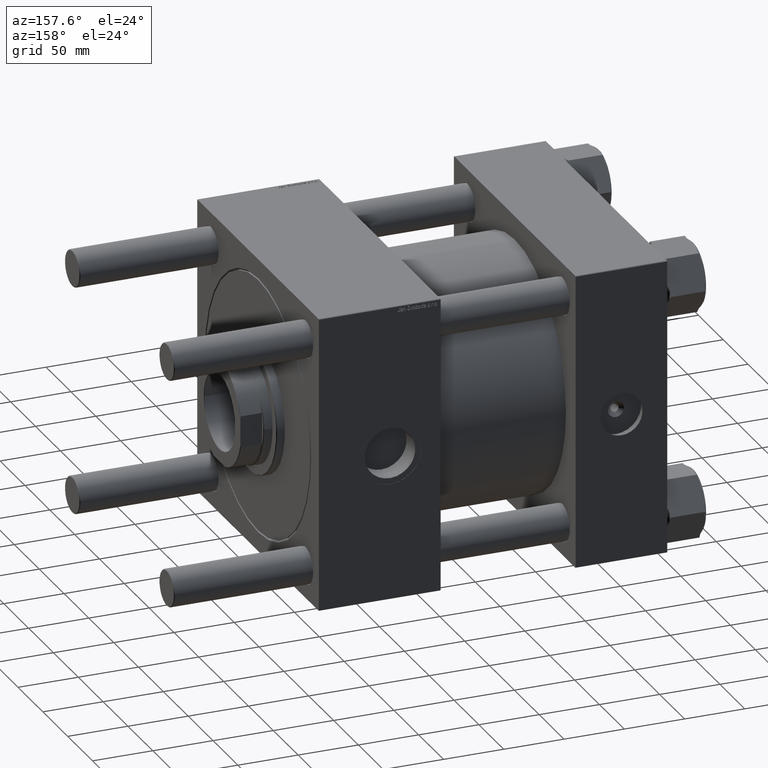
[diagram: clean part render]
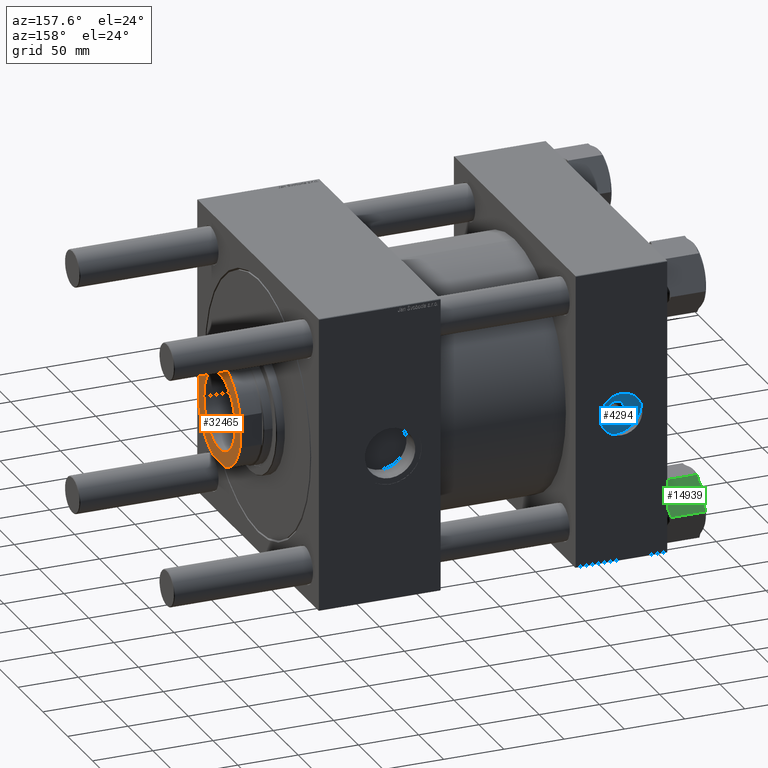
[diagram: same view with three faces highlighted in distinct colors, each labeled with its STEP entity id]
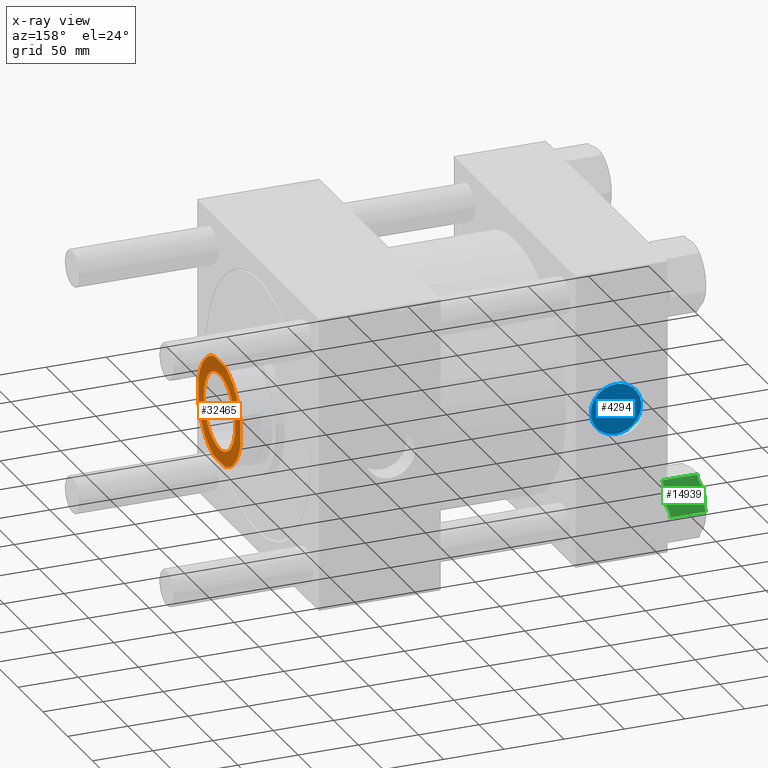
[diagram: x-ray of the same camera — body ghosted, the three highlighted faces saturated]
A machine part, auxiliary view with three faces highlighted in distinct colors.
The next image is the same camera in x-ray (body ghosted, the three faces saturated) — at least one of them is partly hidden behind the body in this view.
Their STEP definitions:

[orange] entity #32465 — the highlighted planar face has unit normal (1, 0, 0).
#2837 = VERTEX_POINT ( 'NONE', #33810 ) ;
#4286 = CARTESIAN_POINT ( 'NONE',  ( 0.000000000000000000, 0.000000000000000000, 245.0000000000000000 ) ) ;
#4710 = DIRECTION ( 'NONE',  ( 0.000000000000000000, -0.000000000000000000, -1.000000000000000000 ) ) ;
#4971 = DIRECTION ( 'NONE',  ( 1.000000000000000000, 0.000000000000000000, 0.000000000000000000 ) ) ;
#5025 = CARTESIAN_POINT ( 'NONE',  ( -42.00000000000000000, 11.32475165290612296, 245.0000000000000000 ) ) ;
#5031 = VERTEX_POINT ( 'NONE', #7472 ) ;
#5293 = AXIS2_PLACEMENT_3D ( 'NONE', #4286, #20746, #38152 ) ;
#6237 = ORIENTED_EDGE ( 'NONE', *, *, #14795, .T. ) ;
#6331 = DIRECTION ( 'NONE',  ( -0.000000000000000000, 0.000000000000000000, 1.000000000000000000 ) ) ;
#7472 = CARTESIAN_POINT ( 'NONE',  ( 11.32475165290636809, -42.00000000000000000, 245.0000000000000000 ) ) ;
#7517 = CARTESIAN_POINT ( 'NONE',  ( -11.32475165290609986, 42.00000000000000711, 245.0000000000000000 ) ) ;
#7546 = EDGE_LOOP ( 'NONE', ( #14921, #47948, #9696, #28595, #49184, #45656, #43589, #6237 ) ) ;
#9696 = ORIENTED_EDGE ( 'NONE', *, *, #26559, .T. ) ;
#10086 = AXIS2_PLACEMENT_3D ( 'NONE', #51944, #21239, #48748 ) ;
#10660 = FACE_OUTER_BOUND ( 'NONE', #7546, .T. ) ;
#11803 = DIRECTION ( 'NONE',  ( -0.000000000000000000, 0.000000000000000000, 1.000000000000000000 ) ) ;
#12168 = AXIS2_PLACEMENT_3D ( 'NONE', #45953, #6331, #23960 ) ;
#12346 = DIRECTION ( 'NONE',  ( -1.652117596168387263E-16, 1.000000000000000000, -0.000000000000000000 ) ) ;
#13232 = LINE ( 'NONE', #14381, #37281 ) ;
#13240 = AXIS2_PLACEMENT_3D ( 'NONE', #56643, #11803, #21020 ) ;
#14381 = CARTESIAN_POINT ( 'NONE',  ( -42.00000000000000711, 42.00000000000000711, 245.0000000000000000 ) ) ;
#14795 = EDGE_CURVE ( 'NONE', #5031, #25158, #30216, .T. ) ;
#14913 = CARTESIAN_POINT ( 'NONE',  ( -41.99999999999999289, -42.00000000000000000, 245.0000000000000000 ) ) ;
#14921 = ORIENTED_EDGE ( 'NONE', *, *, #17417, .T. ) ;
#16280 = EDGE_CURVE ( 'NONE', #31792, #5031, #19511, .T. ) ;
#16680 = LINE ( 'NONE', #17813, #27559 ) ;
#16836 = CARTESIAN_POINT ( 'NONE',  ( 31.55000000000002203, 0.000000000000000000, 245.0000000000000000 ) ) ;
#17417 = EDGE_CURVE ( 'NONE', #25158, #52451, #16680, .T. ) ;
#17813 = CARTESIAN_POINT ( 'NONE',  ( 42.00000000000000000, 42.00000000000000711, 245.0000000000000000 ) ) ;
#18357 = CIRCLE ( 'NONE', #10086, 31.55000000000002203 ) ;
#19511 = LINE ( 'NONE', #14913, #43273 ) ;
#20500 = DIRECTION ( 'NONE',  ( 1.000000000000000000, 0.000000000000000000, 0.000000000000000000 ) ) ;
#20624 = CIRCLE ( 'NONE', #49352, 31.55000000000002203 ) ;
#20746 = DIRECTION ( 'NONE',  ( -0.000000000000000000, 0.000000000000000000, 1.000000000000000000 ) ) ;
#21020 = DIRECTION ( 'NONE',  ( 1.000000000000000000, 0.000000000000000000, 0.000000000000000000 ) ) ;
#21239 = DIRECTION ( 'NONE',  ( 0.000000000000000000, -0.000000000000000000, -1.000000000000000000 ) ) ;
#21729 = VERTEX_POINT ( 'NONE', #7517 ) ;
#22403 = AXIS2_PLACEMENT_3D ( 'NONE', #28377, #32716, #20500 ) ;
#22895 = VERTEX_POINT ( 'NONE', #5025 ) ;
#22935 = VERTEX_POINT ( 'NONE', #50159 ) ;
#23869 = DIRECTION ( 'NONE',  ( 1.000000000000000000, 0.000000000000000000, 0.000000000000000000 ) ) ;
#23960 = DIRECTION ( 'NONE',  ( 1.000000000000000000, 0.000000000000000000, 0.000000000000000000 ) ) ;
#23973 = DIRECTION ( 'NONE',  ( -0.000000000000000000, 0.000000000000000000, 1.000000000000000000 ) ) ;
#24793 = FACE_BOUND ( 'NONE', #37984, .T. ) ;
#24853 = EDGE_CURVE ( 'NONE', #51743, #2837, #18357, .T. ) ;
#25158 = VERTEX_POINT ( 'NONE', #37094 ) ;
#25522 = CIRCLE ( 'NONE', #30158, 43.50000000000000711 ) ;
#26263 = LINE ( 'NONE', #30892, #52662 ) ;
#26559 = EDGE_CURVE ( 'NONE', #22935, #21729, #26263, .T. ) ;
#26978 = DIRECTION ( 'NONE',  ( 1.000000000000000000, 0.000000000000000000, 0.000000000000000000 ) ) ;
#27559 = VECTOR ( 'NONE', #12346, 1000.000000000000000 ) ;
#28377 = CARTESIAN_POINT ( 'NONE',  ( 0.000000000000000000, 0.000000000000000000, 245.0000000000000000 ) ) ;
#28595 = ORIENTED_EDGE ( 'NONE', *, *, #41774, .T. ) ;
#28828 = CIRCLE ( 'NONE', #22403, 43.50000000000004263 ) ;
#30158 = AXIS2_PLACEMENT_3D ( 'NONE', #49245, #23973, #4971 ) ;
#30216 = CIRCLE ( 'NONE', #5293, 43.50000000000006395 ) ;
#30892 = CARTESIAN_POINT ( 'NONE',  ( -42.00000000000000711, 42.00000000000000711, 245.0000000000000000 ) ) ;
#31792 = VERTEX_POINT ( 'NONE', #41187 ) ;
#32126 = EDGE_CURVE ( 'NONE', #52451, #22935, #28828, .T. ) ;
#32465 = ADVANCED_FACE ( 'NONE', ( #24793, #10660 ), #42457, .T. ) ;
#32716 = DIRECTION ( 'NONE',  ( -0.000000000000000000, 0.000000000000000000, 1.000000000000000000 ) ) ;
#33810 = CARTESIAN_POINT ( 'NONE',  ( -31.55000000000002203, 3.863760651309902128E-15, 245.0000000000000000 ) ) ;
#35547 = VERTEX_POINT ( 'NONE', #48240 ) ;
#37094 = CARTESIAN_POINT ( 'NONE',  ( 42.00000000000000711, -11.32475165290633434, 245.0000000000000000 ) ) ;
#37281 = VECTOR ( 'NONE', #53169, 1000.000000000000000 ) ;
#37984 = EDGE_LOOP ( 'NONE', ( #48445, #45834 ) ) ;
#38152 = DIRECTION ( 'NONE',  ( 1.000000000000000000, 0.000000000000000000, 0.000000000000000000 ) ) ;
#41187 = CARTESIAN_POINT ( 'NONE',  ( -11.32475165290613006, -42.00000000000000000, 245.0000000000000000 ) ) ;
#41774 = EDGE_CURVE ( 'NONE', #21729, #22895, #51140, .T. ) ;
#41858 = EDGE_CURVE ( 'NONE', #22895, #35547, #13232, .T. ) ;
#42457 = PLANE ( 'NONE',  #12168 ) ;
#43253 = EDGE_CURVE ( 'NONE', #2837, #51743, #20624, .T. ) ;
#43273 = VECTOR ( 'NONE', #23869, 1000.000000000000000 ) ;
#43589 = ORIENTED_EDGE ( 'NONE', *, *, #16280, .T. ) ;
#44344 = CARTESIAN_POINT ( 'NONE',  ( 0.000000000000000000, 0.000000000000000000, 245.0000000000000000 ) ) ;
#45656 = ORIENTED_EDGE ( 'NONE', *, *, #51317, .T. ) ;
#45834 = ORIENTED_EDGE ( 'NONE', *, *, #43253, .T. ) ;
#45953 = CARTESIAN_POINT ( 'NONE',  ( 0.000000000000000000, 0.000000000000000000, 245.0000000000000000 ) ) ;
#47810 = CARTESIAN_POINT ( 'NONE',  ( 42.00000000000000711, 11.32475165290627039, 245.0000000000000000 ) ) ;
#47948 = ORIENTED_EDGE ( 'NONE', *, *, #32126, .T. ) ;
#48240 = CARTESIAN_POINT ( 'NONE',  ( -42.00000000000000000, -11.32475165290613717, 245.0000000000000000 ) ) ;
#48445 = ORIENTED_EDGE ( 'NONE', *, *, #24853, .T. ) ;
#48748 = DIRECTION ( 'NONE',  ( 1.000000000000000000, 0.000000000000000000, 0.000000000000000000 ) ) ;
#49184 = ORIENTED_EDGE ( 'NONE', *, *, #41858, .T. ) ;
#49245 = CARTESIAN_POINT ( 'NONE',  ( 0.000000000000000000, 0.000000000000000000, 245.0000000000000000 ) ) ;
#49352 = AXIS2_PLACEMENT_3D ( 'NONE', #44344, #4710, #26978 ) ;
#50159 = CARTESIAN_POINT ( 'NONE',  ( 11.32475165290626506, 42.00000000000000711, 245.0000000000000000 ) ) ;
#51140 = CIRCLE ( 'NONE', #13240, 43.50000000000000711 ) ;
#51317 = EDGE_CURVE ( 'NONE', #35547, #31792, #25522, .T. ) ;
#51743 = VERTEX_POINT ( 'NONE', #16836 ) ;
#51944 = CARTESIAN_POINT ( 'NONE',  ( 0.000000000000000000, 0.000000000000000000, 245.0000000000000000 ) ) ;
#52451 = VERTEX_POINT ( 'NONE', #47810 ) ;
#52662 = VECTOR ( 'NONE', #53975, 1000.000000000000000 ) ;
#53169 = DIRECTION ( 'NONE',  ( 1.652117596168387263E-16, -1.000000000000000000, 0.000000000000000000 ) ) ;
#53975 = DIRECTION ( 'NONE',  ( -1.000000000000000000, -0.000000000000000000, -0.000000000000000000 ) ) ;
#56643 = CARTESIAN_POINT ( 'NONE',  ( 0.000000000000000000, 0.000000000000000000, 245.0000000000000000 ) ) ;

[blue] entity #4294 — the highlighted planar face has unit normal (0, 1, 0).
#1772 = VERTEX_POINT ( 'NONE', #6137 ) ;
#3118 = EDGE_CURVE ( 'NONE', #10062, #32114, #54085, .T. ) ;
#4294 = ADVANCED_FACE ( 'NONE', ( #13229, #44458 ), #40124, .T. ) ;
#5656 = DIRECTION ( 'NONE',  ( -0.000000000000000000, -1.000000000000000000, -0.000000000000000000 ) ) ;
#6137 = CARTESIAN_POINT ( 'NONE',  ( 38.00000000000000000, 111.5000000000000426, 6.639999999999979252 ) ) ;
#6936 = AXIS2_PLACEMENT_3D ( 'NONE', #19567, #54896, #15252 ) ;
#9710 = DIRECTION ( 'NONE',  ( 0.000000000000000000, 0.000000000000000000, 1.000000000000000000 ) ) ;
#10062 = VERTEX_POINT ( 'NONE', #22379 ) ;
#10639 = CIRCLE ( 'NONE', #14356, 20.96000000000000085 ) ;
#11479 = EDGE_CURVE ( 'NONE', #1772, #52874, #12600, .T. ) ;
#12600 = CIRCLE ( 'NONE', #24585, 6.639999999999979252 ) ;
#13229 = FACE_BOUND ( 'NONE', #20509, .T. ) ;
#14356 = AXIS2_PLACEMENT_3D ( 'NONE', #24472, #41010, #28824 ) ;
#15252 = DIRECTION ( 'NONE',  ( 0.000000000000000000, 0.000000000000000000, 1.000000000000000000 ) ) ;
#16275 = ORIENTED_EDGE ( 'NONE', *, *, #11479, .T. ) ;
#16625 = ORIENTED_EDGE ( 'NONE', *, *, #48045, .T. ) ;
#19567 = CARTESIAN_POINT ( 'NONE',  ( 38.00000000000000000, 111.5000000000000426, 0.000000000000000000 ) ) ;
#20509 = EDGE_LOOP ( 'NONE', ( #16275, #35921 ) ) ;
#22379 = CARTESIAN_POINT ( 'NONE',  ( 38.00000000000000000, 111.5000000000000426, -20.96000000000000085 ) ) ;
#23754 = DIRECTION ( 'NONE',  ( -0.000000000000000000, -1.000000000000000000, -0.000000000000000000 ) ) ;
#24472 = CARTESIAN_POINT ( 'NONE',  ( 38.00000000000000000, 111.5000000000000426, 0.000000000000000000 ) ) ;
#24585 = AXIS2_PLACEMENT_3D ( 'NONE', #45288, #5656, #9710 ) ;
#27245 = DIRECTION ( 'NONE',  ( 0.000000000000000000, 0.000000000000000000, 1.000000000000000000 ) ) ;
#27688 = DIRECTION ( 'NONE',  ( 0.000000000000000000, 1.000000000000000000, 0.000000000000000000 ) ) ;
#27965 = DIRECTION ( 'NONE',  ( 0.000000000000000000, -0.000000000000000000, 1.000000000000000000 ) ) ;
#28824 = DIRECTION ( 'NONE',  ( 0.000000000000000000, 0.000000000000000000, 1.000000000000000000 ) ) ;
#32114 = VERTEX_POINT ( 'NONE', #33839 ) ;
#32999 = EDGE_CURVE ( 'NONE', #52874, #1772, #33425, .T. ) ;
#33425 = CIRCLE ( 'NONE', #41744, 6.639999999999979252 ) ;
#33839 = CARTESIAN_POINT ( 'NONE',  ( 38.00000000000000000, 111.5000000000000426, 20.96000000000000085 ) ) ;
#35921 = ORIENTED_EDGE ( 'NONE', *, *, #32999, .T. ) ;
#40124 = PLANE ( 'NONE',  #45638 ) ;
#40986 = CARTESIAN_POINT ( 'NONE',  ( 38.00000000000000000, 111.5000000000000426, 0.000000000000000000 ) ) ;
#41010 = DIRECTION ( 'NONE',  ( 0.000000000000000000, 1.000000000000000000, 0.000000000000000000 ) ) ;
#41744 = AXIS2_PLACEMENT_3D ( 'NONE', #53880, #23754, #27245 ) ;
#44458 = FACE_OUTER_BOUND ( 'NONE', #54642, .T. ) ;
#45125 = CARTESIAN_POINT ( 'NONE',  ( 38.00000000000000000, 111.5000000000000426, -6.639999999999979252 ) ) ;
#45288 = CARTESIAN_POINT ( 'NONE',  ( 38.00000000000000000, 111.5000000000000426, 0.000000000000000000 ) ) ;
#45638 = AXIS2_PLACEMENT_3D ( 'NONE', #40986, #27688, #27965 ) ;
#46918 = ORIENTED_EDGE ( 'NONE', *, *, #3118, .T. ) ;
#48045 = EDGE_CURVE ( 'NONE', #32114, #10062, #10639, .T. ) ;
#52874 = VERTEX_POINT ( 'NONE', #45125 ) ;
#53880 = CARTESIAN_POINT ( 'NONE',  ( 38.00000000000000000, 111.5000000000000426, 0.000000000000000000 ) ) ;
#54085 = CIRCLE ( 'NONE', #6936, 20.96000000000000085 ) ;
#54642 = EDGE_LOOP ( 'NONE', ( #16625, #46918 ) ) ;
#54896 = DIRECTION ( 'NONE',  ( 0.000000000000000000, 1.000000000000000000, 0.000000000000000000 ) ) ;

[green] entity #14939 — the highlighted planar face has unit normal (-0, -0.8198, -0.5726).
#625 = CARTESIAN_POINT ( 'NONE',  ( -18.72855837649303368, 18.86453025958454788, -0.8774574461467182784 ) ) ;
#993 = CARTESIAN_POINT ( 'NONE',  ( -21.32275520124565915, 14.37124955427913164, -33.00000000000000000 ) ) ;
#1229 = EDGE_CURVE ( 'NONE', #19750, #21137, #55927, .T. ) ;
#1796 = ORIENTED_EDGE ( 'NONE', *, *, #49773, .F. ) ;
#2802 = LINE ( 'NONE', #32910, #30303 ) ;
#4424 = CARTESIAN_POINT ( 'NONE',  ( -14.80999999999999694, 25.65167246009508872, -33.00000000000000000 ) ) ;
#4959 = CARTESIAN_POINT ( 'NONE',  ( -20.45100301642623108, 15.88116862999557100, -0.2268257654553572367 ) ) ;
#5643 = VERTEX_POINT ( 'NONE', #50197 ) ;
#6274 = EDGE_CURVE ( 'NONE', #39115, #24374, #55725, .T. ) ;
#6367 = LINE ( 'NONE', #51180, #28687 ) ;
#6496 = ORIENTED_EDGE ( 'NONE', *, *, #53203, .F. ) ;
#6618 = VERTEX_POINT ( 'NONE', #42077 ) ;
#6698 = CARTESIAN_POINT ( 'NONE',  ( -14.80999999999999694, 25.65167246009508872, -2.000000000000001776 ) ) ;
#7108 = CARTESIAN_POINT ( 'NONE',  ( -24.41248883551436677, 9.019673917871298130, -32.63983934648538110 ) ) ;
#7136 = CARTESIAN_POINT ( 'NONE',  ( -27.37752578299570416, 3.884079278514703137, -2.000000000000000000 ) ) ;
#7173 = VERTEX_POINT ( 'NONE', #47045 ) ;
#9086 = EDGE_LOOP ( 'NONE', ( #27072, #38823, #46312, #1796, #54162, #33095, #23043, #6496, #17811, #21517 ) ) ;
#10860 = EDGE_CURVE ( 'NONE', #48226, #39115, #51598, .T. ) ;
#11544 = DIRECTION ( 'NONE',  ( -0.000000000000000000, -0.000000000000000000, 1.000000000000000000 ) ) ;
#11961 = DIRECTION ( 'NONE',  ( -0.000000000000000000, -0.000000000000000000, 1.000000000000000000 ) ) ;
#12096 = EDGE_CURVE ( 'NONE', #21137, #5643, #32984, .T. ) ;
#12306 = CARTESIAN_POINT ( 'NONE',  ( -23.10350858189070422, 11.28689422325190073, -32.95327330804747135 ) ) ;
#14939 = ADVANCED_FACE ( 'NONE', ( #21910 ), #22475, .F. ) ;
#16350 = CARTESIAN_POINT ( 'NONE',  ( -23.97899698357377929, 9.770503830099515952, -32.77317423454463352 ) ) ;
#16424 = LINE ( 'NONE', #51733, #45001 ) ;
#17258 = EDGE_CURVE ( 'NONE', #7173, #19750, #2802, .T. ) ;
#17406 = CARTESIAN_POINT ( 'NONE',  ( -20.01751116448564360, 16.63199854222379059, -0.3601606535146268939 ) ) ;
#17811 = ORIENTED_EDGE ( 'NONE', *, *, #12096, .F. ) ;
#18248 = CARTESIAN_POINT ( 'NONE',  ( -22.21500000000001052, 12.82583623004754791, 0.000000000000000000 ) ) ;
#18311 = LINE ( 'NONE', #39169, #43361 ) ;
#19350 = VERTEX_POINT ( 'NONE', #7136 ) ;
#19750 = VERTEX_POINT ( 'NONE', #45502 ) ;
#20100 = CARTESIAN_POINT ( 'NONE',  ( -22.66059646721667420, 12.05404050915508130, -33.00000000000001421 ) ) ;
#20378 = CARTESIAN_POINT ( 'NONE',  ( -26.54539380551817374, 5.325374142108540987, -31.62143116945745902 ) ) ;
#20511 = EDGE_CURVE ( 'NONE', #19350, #6618, #18311, .T. ) ;
#20658 = CARTESIAN_POINT ( 'NONE',  ( -27.37752578299570416, 3.884079278514703137, -31.00000000000000000 ) ) ;
#21137 = VERTEX_POINT ( 'NONE', #49738 ) ;
#21517 = ORIENTED_EDGE ( 'NONE', *, *, #1229, .F. ) ;
#21556 = EDGE_CURVE ( 'NONE', #24374, #29729, #40756, .T. ) ;
#21910 = FACE_OUTER_BOUND ( 'NONE', #9086, .T. ) ;
#22475 = PLANE ( 'NONE',  #40469 ) ;
#22586 = CARTESIAN_POINT ( 'NONE',  ( -17.05247421700430976, 21.76759318158038781, -2.000000000000000000 ) ) ;
#22723 = VECTOR ( 'NONE', #11961, 1000.000000000000000 ) ;
#23043 = ORIENTED_EDGE ( 'NONE', *, *, #10860, .F. ) ;
#23532 = CARTESIAN_POINT ( 'NONE',  ( -17.05247421700430976, 21.76759318158038781, -31.00000000000000000 ) ) ;
#24374 = VERTEX_POINT ( 'NONE', #54095 ) ;
#25015 = CARTESIAN_POINT ( 'NONE',  ( -25.70144162350697670, 6.787142200510541734, -32.12254255385327895 ) ) ;
#26289 = VECTOR ( 'NONE', #47618, 999.9999999999998863 ) ;
#27072 = ORIENTED_EDGE ( 'NONE', *, *, #17258, .F. ) ;
#27346 = CARTESIAN_POINT ( 'NONE',  ( -14.80999999999999694, 25.65167246009508872, -31.00000000000000000 ) ) ;
#28082 = EDGE_CURVE ( 'NONE', #7173, #6618, #6367, .T. ) ;
#28574 = CARTESIAN_POINT ( 'NONE',  ( -27.37752578299570416, 3.884079278514703137, -2.000000000000000000 ) ) ;
#28687 = VECTOR ( 'NONE', #11544, 1000.000000000000000 ) ;
#29729 = VERTEX_POINT ( 'NONE', #46004 ) ;
#29761 = B_SPLINE_CURVE_WITH_KNOTS ( 'NONE', 3,
 ( #42445, #47069, #33468, #56332, #42722, #28574 ),
 .UNSPECIFIED., .F., .F.,
 ( 4, 2, 4 ),
 ( 0.01051765955737594613, 0.01578241387615341579, 0.02104716819493088198 ),
 .UNSPECIFIED. ) ;
#30303 = VECTOR ( 'NONE', #50570, 999.9999999999998863 ) ;
#30703 = CARTESIAN_POINT ( 'NONE',  ( -17.88460619448183664, 20.32629831798654152, -1.378568830542538759 ) ) ;
#32910 = CARTESIAN_POINT ( 'NONE',  ( -29.62000000000000455, 1.322753825639812332E-14, -31.00000000000000000 ) ) ;
#32984 = B_SPLINE_CURVE_WITH_KNOTS ( 'NONE', 3,
 ( #45255, #993, #45526, #49023, #40039, #23532 ),
 .UNSPECIFIED., .F., .F.,
 ( 4, 2, 4 ),
 ( 0.01051765955737596347, 0.01578241387615342967, 0.02104716819493089586 ),
 .UNSPECIFIED. ) ;
#33095 = ORIENTED_EDGE ( 'NONE', *, *, #6274, .F. ) ;
#33468 = CARTESIAN_POINT ( 'NONE',  ( -23.98159980063226371, 9.765995618711439619, -0.1873836274020702353 ) ) ;
#35056 = CARTESIAN_POINT ( 'NONE',  ( -21.32649141810930971, 14.36477823684319155, -0.04672669195252816821 ) ) ;
#35518 = DIRECTION ( 'NONE',  ( 0.8660254037844385966, -0.5000000000000002220, 0.000000000000000000 ) ) ;
#38823 = ORIENTED_EDGE ( 'NONE', *, *, #28082, .T. ) ;
#39115 = VERTEX_POINT ( 'NONE', #6698 ) ;
#39169 = CARTESIAN_POINT ( 'NONE',  ( -29.62000000000000455, 1.322753825639812332E-14, -2.000000000000001776 ) ) ;
#39581 = DIRECTION ( 'NONE',  ( 0.5000000000000001110, 0.8660254037844384856, 0.000000000000000000 ) ) ;
#40039 = CARTESIAN_POINT ( 'NONE',  ( -17.88533787955182675, 20.32503100227019033, -31.62197758747890219 ) ) ;
#40469 = AXIS2_PLACEMENT_3D ( 'NONE', #44482, #35518, #39581 ) ;
#40756 = B_SPLINE_CURVE_WITH_KNOTS ( 'NONE', 3,
 ( #22586, #30703, #625, #17406, #4959, #35056, #44587, #18248 ),
 .UNSPECIFIED., .F., .F.,
 ( 4, 2, 2, 4 ),
 ( 5.641212978129335099E-07, 0.005259111839336876384, 0.007888385698356413858, 0.01051765955737594613 ),
 .UNSPECIFIED. ) ;
#42077 = CARTESIAN_POINT ( 'NONE',  ( -29.62000000000000455, 1.322753825639812332E-14, -2.000000000000001776 ) ) ;
#42445 = CARTESIAN_POINT ( 'NONE',  ( -22.21500000000001052, 12.82583623004754791, 0.000000000000000000 ) ) ;
#42722 = CARTESIAN_POINT ( 'NONE',  ( -26.54466212044819073, 5.326641457824898396, -1.378022412521090034 ) ) ;
#43361 = VECTOR ( 'NONE', #48149, 999.9999999999998863 ) ;
#44482 = CARTESIAN_POINT ( 'NONE',  ( -29.62000000000000455, 1.322753825639812332E-14, -33.00000000000000000 ) ) ;
#44587 = CARTESIAN_POINT ( 'NONE',  ( -21.76940353278333617, 13.59763195094000920, 6.621915352090285937E-15 ) ) ;
#45001 = VECTOR ( 'NONE', #52605, 999.9999999999998863 ) ;
#45255 = CARTESIAN_POINT ( 'NONE',  ( -22.21500000000000696, 12.82583623004754969, -33.00000000000000000 ) ) ;
#45502 = CARTESIAN_POINT ( 'NONE',  ( -27.37752578299570416, 3.884079278514703137, -31.00000000000000000 ) ) ;
#45526 = CARTESIAN_POINT ( 'NONE',  ( -20.44840019936775732, 15.88567684138365088, -32.81261637259793673 ) ) ;
#46004 = CARTESIAN_POINT ( 'NONE',  ( -22.21500000000001052, 12.82583623004754791, 0.000000000000000000 ) ) ;
#46312 = ORIENTED_EDGE ( 'NONE', *, *, #20511, .F. ) ;
#47045 = CARTESIAN_POINT ( 'NONE',  ( -29.62000000000000455, 1.322753825639812332E-14, -31.00000000000000000 ) ) ;
#47069 = CARTESIAN_POINT ( 'NONE',  ( -23.10724479875434412, 11.28042290581594997, 6.357829302090775978E-15 ) ) ;
#47618 = DIRECTION ( 'NONE',  ( -0.5000000000000002220, -0.8660254037844385966, 0.000000000000000000 ) ) ;
#48149 = DIRECTION ( 'NONE',  ( -0.5000000000000002220, -0.8660254037844385966, 0.000000000000000000 ) ) ;
#48226 = VERTEX_POINT ( 'NONE', #27346 ) ;
#49023 = CARTESIAN_POINT ( 'NONE',  ( -18.72973346006637030, 18.86249495513238017, -32.12316606625579851 ) ) ;
#49738 = CARTESIAN_POINT ( 'NONE',  ( -22.21500000000000696, 12.82583623004754969, -33.00000000000000000 ) ) ;
#49773 = EDGE_CURVE ( 'NONE', #29729, #19350, #29761, .T. ) ;
#50197 = CARTESIAN_POINT ( 'NONE',  ( -17.05247421700430976, 21.76759318158038781, -31.00000000000000000 ) ) ;
#50570 = DIRECTION ( 'NONE',  ( 0.5000000000000002220, 0.8660254037844385966, 0.000000000000000000 ) ) ;
#51180 = CARTESIAN_POINT ( 'NONE',  ( -29.62000000000000455, 1.322753825639812332E-14, -33.00000000000000000 ) ) ;
#51598 = LINE ( 'NONE', #4424, #22723 ) ;
#51733 = CARTESIAN_POINT ( 'NONE',  ( -29.62000000000000455, 1.322753825639812332E-14, -31.00000000000000000 ) ) ;
#52241 = CARTESIAN_POINT ( 'NONE',  ( -22.21500000000000696, 12.82583623004754969, -33.00000000000000000 ) ) ;
#52605 = DIRECTION ( 'NONE',  ( 0.5000000000000002220, 0.8660254037844385966, 0.000000000000000000 ) ) ;
#53203 = EDGE_CURVE ( 'NONE', #5643, #48226, #16424, .T. ) ;
#54095 = CARTESIAN_POINT ( 'NONE',  ( -17.05247421700430976, 21.76759318158038781, -2.000000000000000000 ) ) ;
#54162 = ORIENTED_EDGE ( 'NONE', *, *, #21556, .F. ) ;
#55725 = LINE ( 'NONE', #56013, #26289 ) ;
#55927 = B_SPLINE_CURVE_WITH_KNOTS ( 'NONE', 3,
 ( #20658, #20378, #25015, #7108, #16350, #12306, #20100, #52241 ),
 .UNSPECIFIED., .F., .F.,
 ( 4, 2, 2, 4 ),
 ( 5.641212978291683787E-07, 0.005259111839336902405, 0.007888385698356432940, 0.01051765955737596347 ),
 .UNSPECIFIED. ) ;
#56013 = CARTESIAN_POINT ( 'NONE',  ( -29.62000000000000455, 1.322753825639812332E-14, -2.000000000000001776 ) ) ;
#56332 = CARTESIAN_POINT ( 'NONE',  ( -25.70026653993364363, 6.789177504962701448, -0.8768339337442031534 ) ) ;